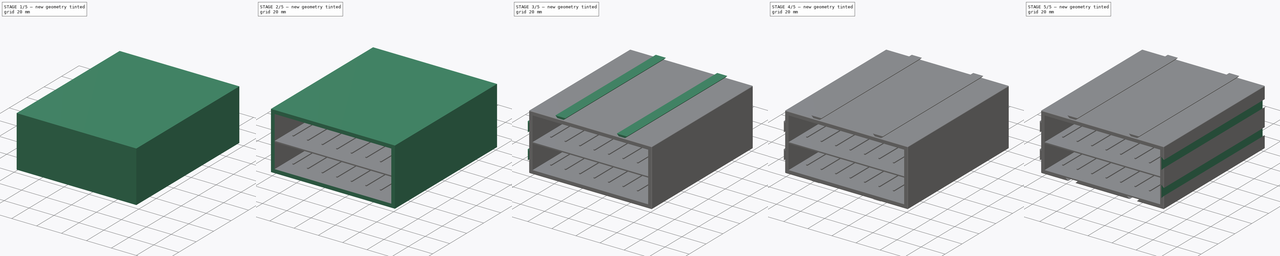
[diagram: build sequence overview — one tinted view per stage of 5, left to right]
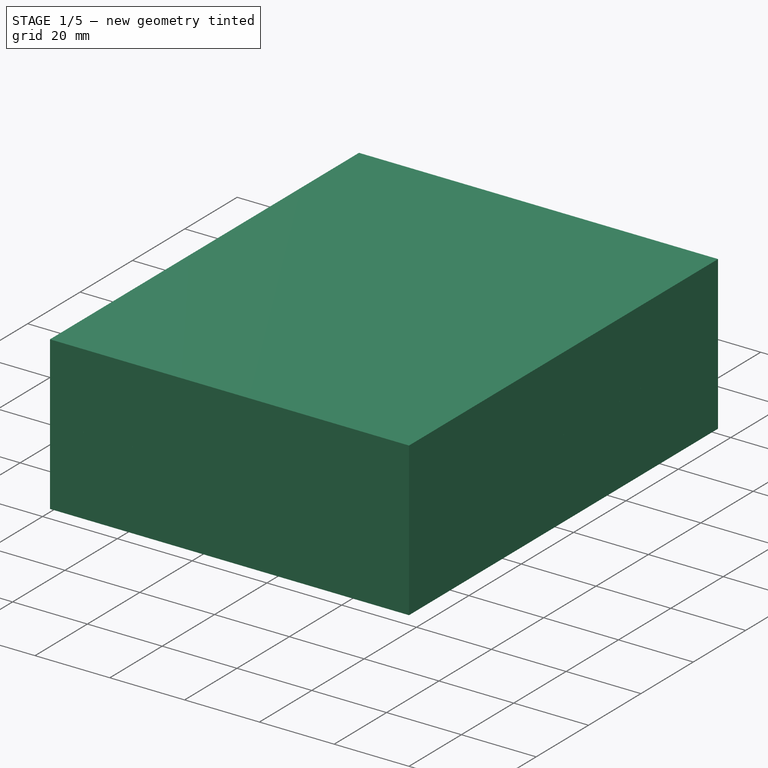
[diagram: stage 1 of 5 — iso view after this stage's code; geometry added in this stage tinted green]
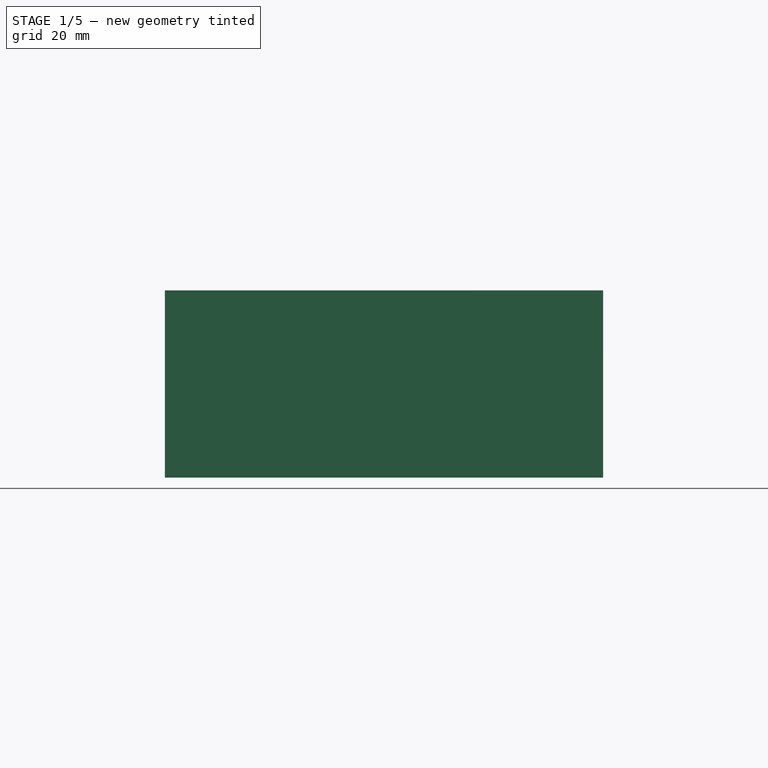
[diagram: stage 1 of 5 — front view after this stage's code; geometry added in this stage tinted green]
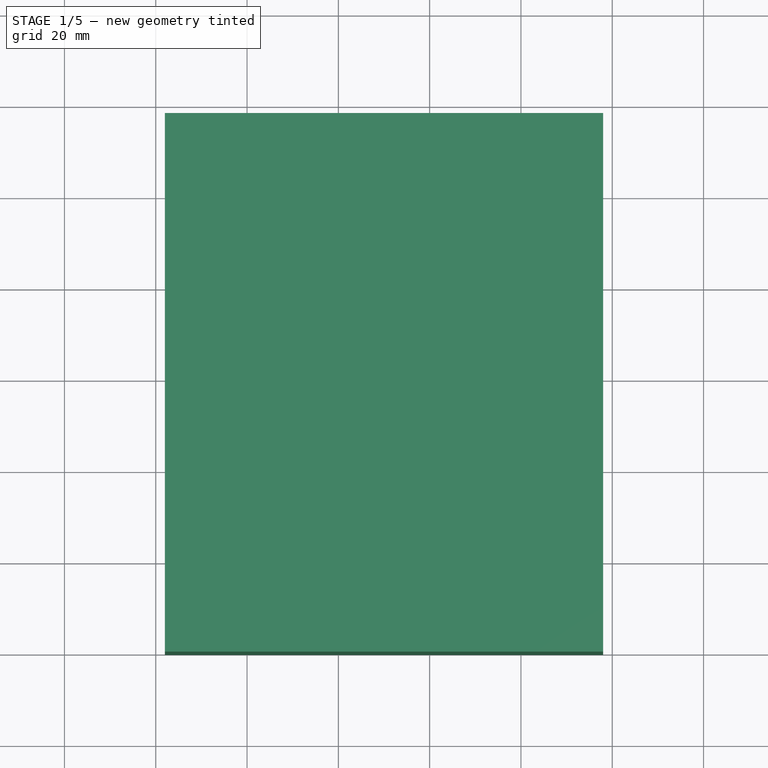
[diagram: stage 1 of 5 — top view after this stage's code; geometry added in this stage tinted green]
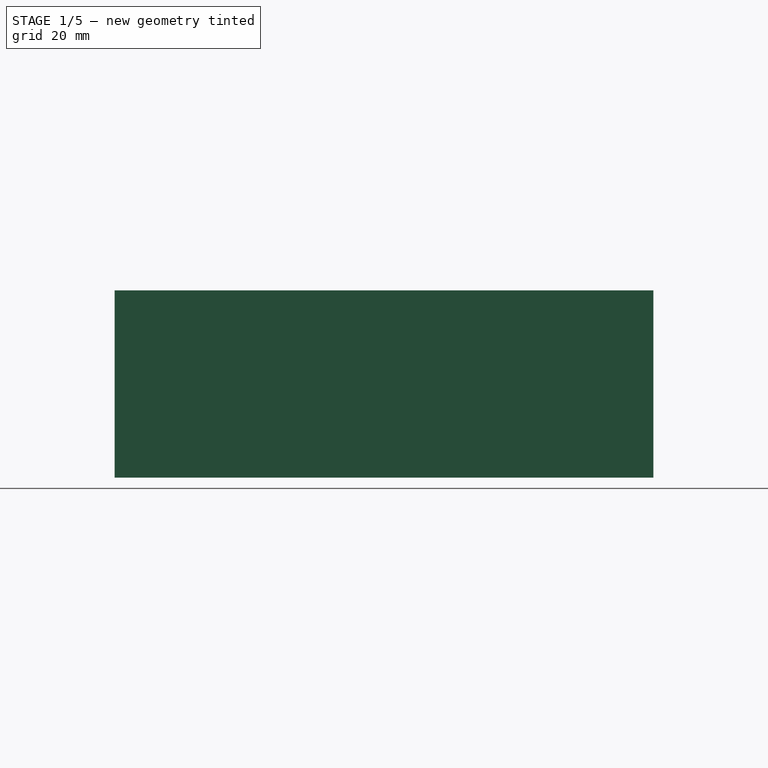
[diagram: stage 1 of 5 — right view after this stage's code; geometry added in this stage tinted green]
FCSTD DOCUMENT  (FreeCAD 0.16R)
Label: cabinet
License: All rights reserved
LicenseURL: http://en.wikipedia.org/wiki/All_rights_reserved
objects: Part::MultiFuse×5, Sketcher::SketchObject×5, Part::Extrusion×5, Part::FeaturePython×5, Part::Box×3, Part::Cut×2, Part::Fillet×1
note: 26 computed .brp shape members not serialized (recipe doc carries the construction recipe); baked Part::Feature solids carry a one-line shape summary decoded from their .brp

FEATURE [Part::Box] Box001  label="Inner Box"
  Height = 41
  Length = 96
  Placement = pos=(2,0,2) rot=(0,0,1;0rad)
  Width = 118
FEATURE [Part::Box] Box002  label="Separator"
  Height = 1
  Length = 96
  Placement = pos=(2,0,22) rot=(0,0,1;0rad)
  Width = 118
FEATURE [Sketcher::SketchObject] Sketch  label="Guide sketch"
  sketch-geometry (6):
    g0: LineSegment StartX=0.5 StartY=0 StartZ=0 EndX=0.25 EndY=104 EndZ=0
    g1: LineSegment StartX=0.25 StartY=104 StartZ=0 EndX=0.25 EndY=105 EndZ=0
    g2: LineSegment StartX=0.25 StartY=105 StartZ=0 EndX=1.75 EndY=105 EndZ=0
    g3: LineSegment StartX=1.75 StartY=105 StartZ=0 EndX=1.75 EndY=104 EndZ=0
    g4: LineSegment StartX=1.75 StartY=104 StartZ=0 EndX=1.5 EndY=0 EndZ=0
    g5: LineSegment StartX=1.5 StartY=0 StartZ=0 EndX=0.5 EndY=0 EndZ=0
  constraints (18):
    c: Coincident(g0,g1)
    c: Coincident(g1,g2)
    c: Coincident(g2,g3)
    c: Coincident(g3,g4)
    c: Coincident(g4,g5)
    c: Coincident(g5,g0)
    c: Horizontal(g2)
    c: Vertical(g1)
    c: Vertical(g3)
    c: Horizontal(g5)
    c: DistanceX(g5,g5) = 1
    c: DistanceX(g2,g2) = 1.5
    c: DistanceY(g1,g1) = 1
    c: DistanceY(g3,g3) = 1
    c: DistanceY(g4,g2) = 105
    c: DistanceY(g0,g-1) = 0
    c: DistanceX(g-1,g0) = 0.5
    c: DistanceX(g-1,g1) = 0.25
FEATURE [Part::Extrusion] Extrude  label="Guide"
  Base = -> Sketch
  Dir = (0,0,0.8)
  Solid = true
FEATURE [Part::FeaturePython] Array002  label="Guide Array"  # Draft array (typed FeaturePython)
  Angle = 360
  ArrayType = 0
  Axis = (0,0,1)
  Base = -> Extrude
  Center = (0,0,0)
  Fuse = false
  IntervalAxis = (0,0,0)
  IntervalX = (12,0,0)
  IntervalY = (0,1,0)
  IntervalZ = (0,0,21)
  NumberPolar = 1
  NumberX = 8
  NumberY = 1
  NumberZ = 2
  Placement = pos=(7,13,2) rot=(0,0,1;0rad)
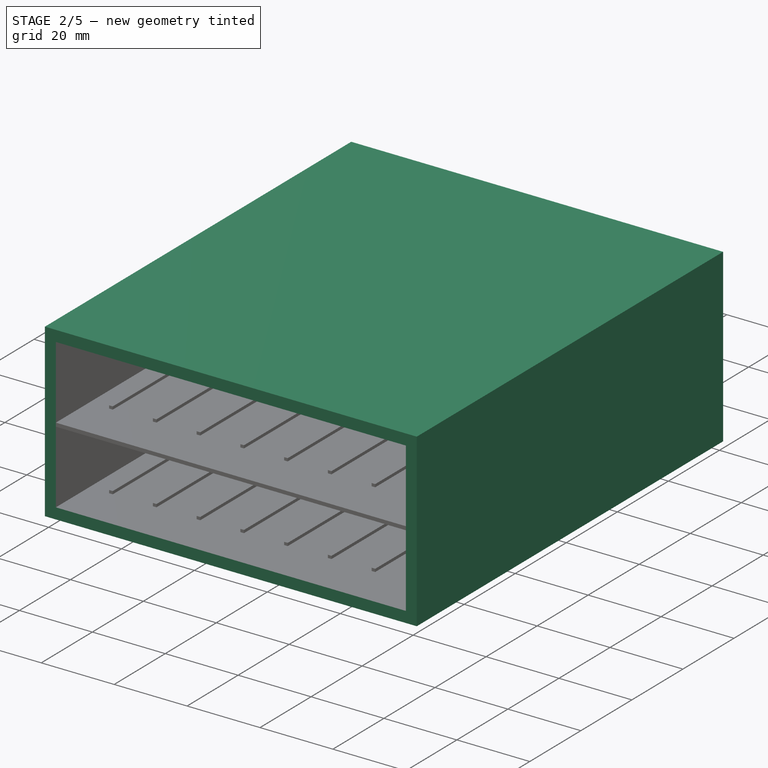
[diagram: stage 2 of 5 — iso view after this stage's code; geometry added in this stage tinted green]
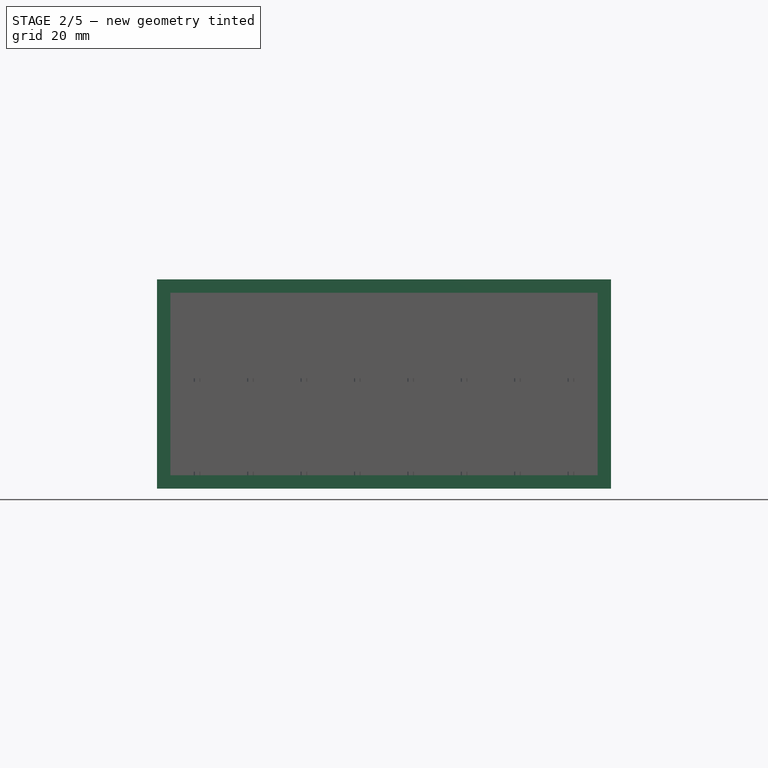
[diagram: stage 2 of 5 — front view after this stage's code; geometry added in this stage tinted green]
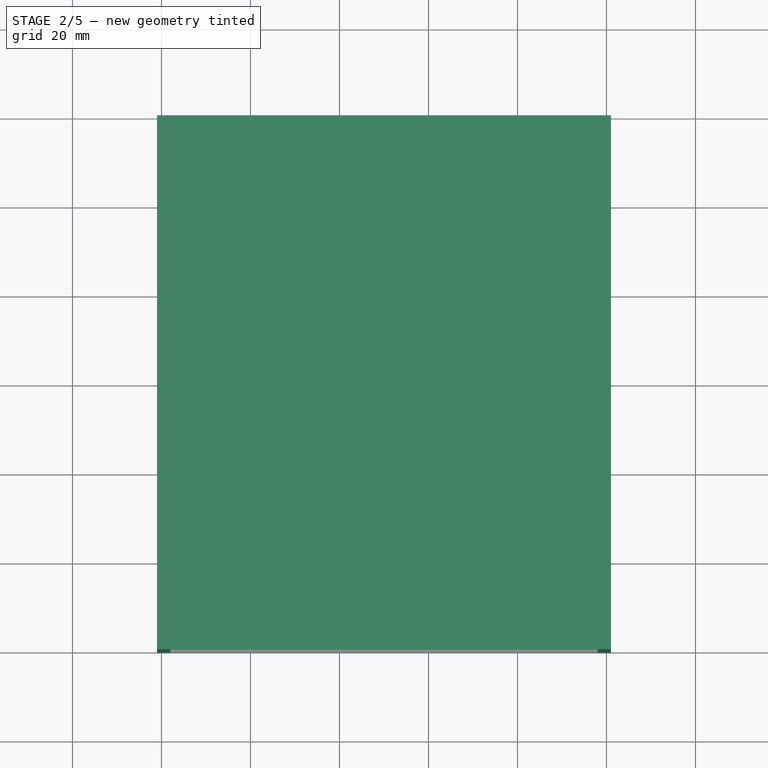
[diagram: stage 2 of 5 — top view after this stage's code; geometry added in this stage tinted green]
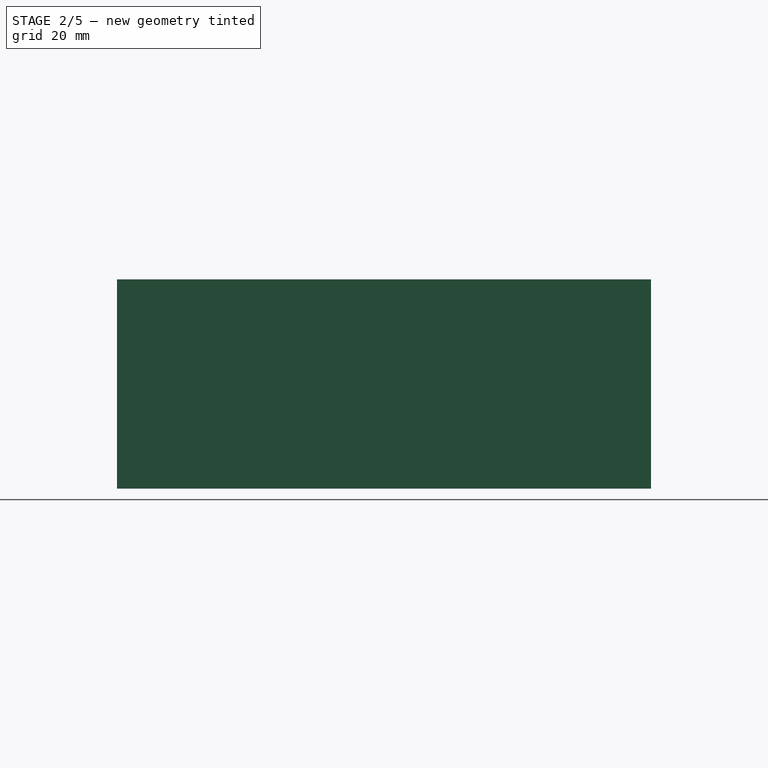
[diagram: stage 2 of 5 — right view after this stage's code; geometry added in this stage tinted green]
FEATURE [Part::Box] Box  label="Outer Box"
  Height = 47
  Length = 102
  Placement = pos=(-1,0,-1) rot=(0,0,1;0rad)
  Width = 120
FEATURE [Part::Cut] Cut  label="Shell"
  Base = -> Box
  Tool = -> Box001
FEATURE [Part::MultiFuse] Fusion  label="Cabinet Base"
  Shapes = -> [Cut,Box002]
FEATURE [Part::MultiFuse] Fusion001  label="GuidedCabinetBase"
  Shapes = -> [Array002,Fusion]
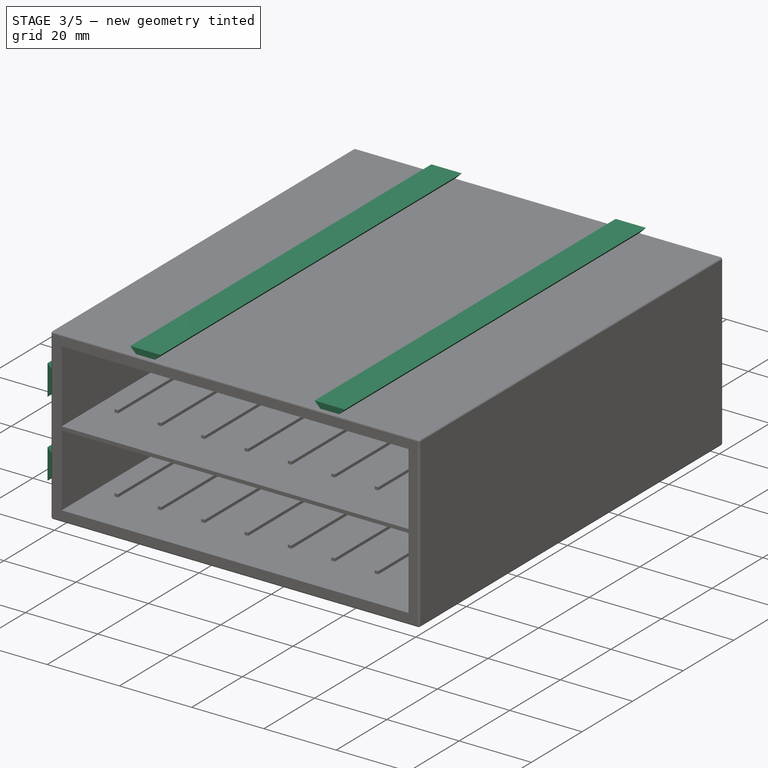
[diagram: stage 3 of 5 — iso view after this stage's code; geometry added in this stage tinted green]
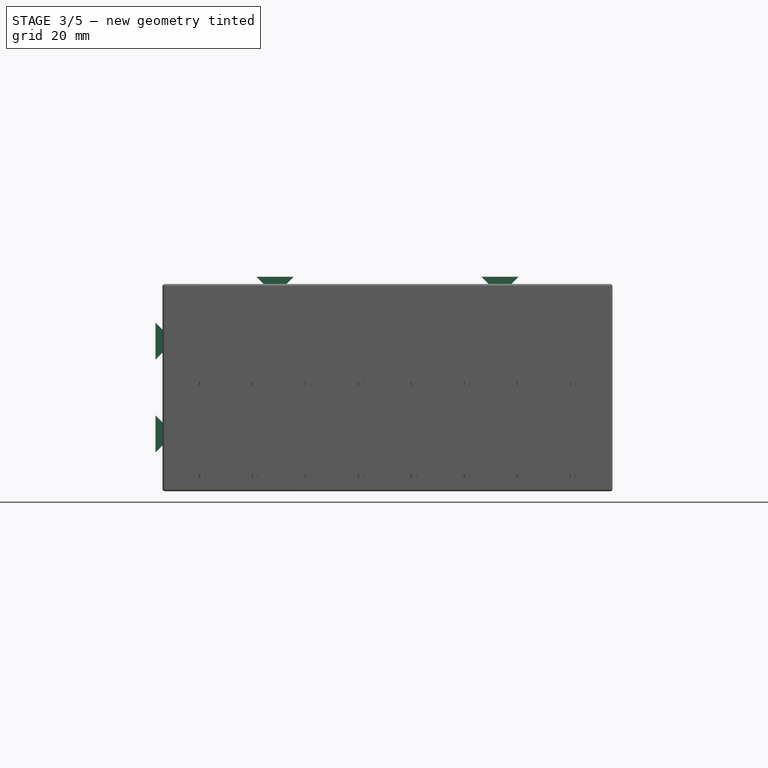
[diagram: stage 3 of 5 — front view after this stage's code; geometry added in this stage tinted green]
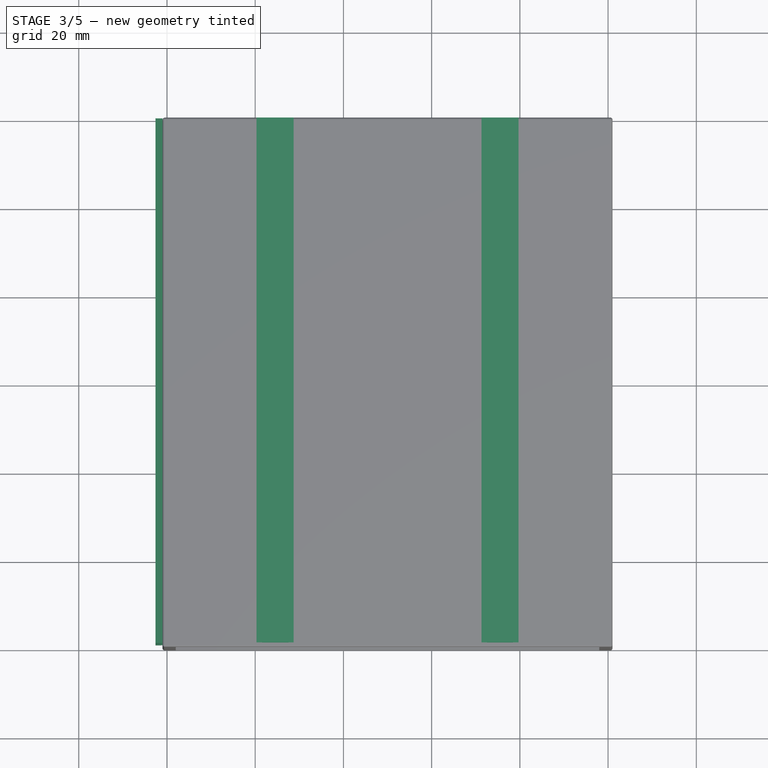
[diagram: stage 3 of 5 — top view after this stage's code; geometry added in this stage tinted green]
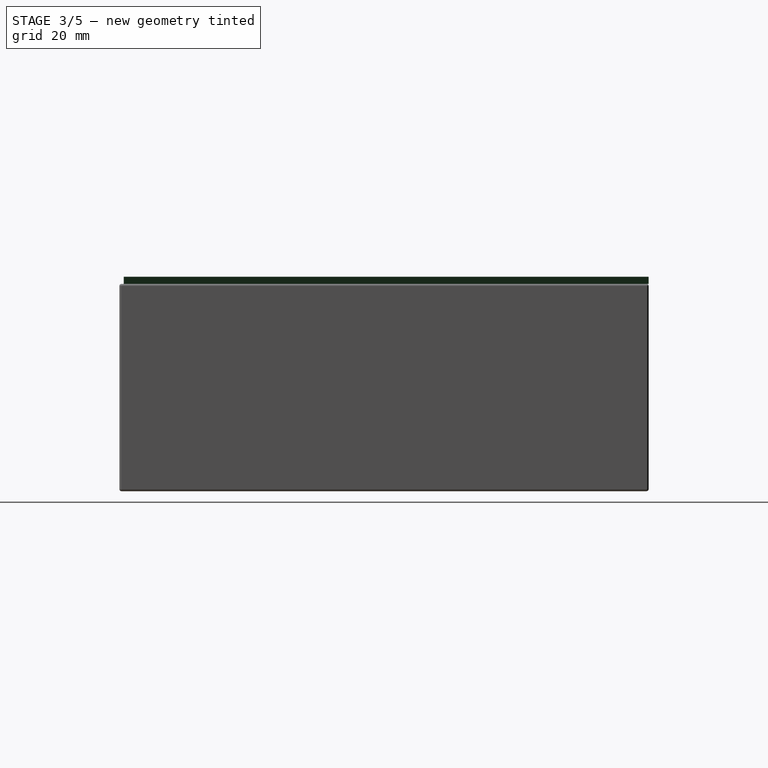
[diagram: stage 3 of 5 — right view after this stage's code; geometry added in this stage tinted green]
FEATURE [Sketcher::SketchObject] Sketch002  label="left_side_guide_sketch"
  Placement = pos=(-1,0,7) rot=(1,0,0;1.5708rad)
  sketch-geometry (4):
    g0: LineSegment StartX=0.4 StartY=9.2 StartZ=0 EndX=0.4 EndY=0.8 EndZ=0
    g1: LineSegment StartX=0.4 StartY=0.8 StartZ=0 EndX=2 EndY=2.4 EndZ=0
    g2: LineSegment StartX=2 StartY=2.4 StartZ=0 EndX=2 EndY=7.6 EndZ=0
    g3: LineSegment StartX=2 StartY=7.6 StartZ=0 EndX=0.4 EndY=9.2 EndZ=0
  constraints (12):
    c: Coincident(g0,g1)
    c: Coincident(g1,g2)
    c: Coincident(g2,g3)
    c: Coincident(g3,g0)
    c: Vertical(g2)
    c: DistanceY(g2,g2) = 5.2
    c: Vertical(g0)
    c: DistanceX(g-1,g0) = 0.4
    c: DistanceY(g-1,g0) = 0.8
    c: DistanceY(g0,g0) = 8.4
    c: DistanceX(g-1,g1) = 2
    c: DistanceY(g-1,g1) = 2.4
FEATURE [Part::Extrusion] Extrude002  label="LeftsideGuide"
  Base = -> Sketch002
  Dir = (0,119,0)
  Placement = pos=(-2,1,0) rot=(0,0,1;0rad)
  Solid = true
FEATURE [Part::FeaturePython] Array004  label="LeftSideGuide Array"  # Draft array (typed FeaturePython)
  Angle = 360
  ArrayType = 0
  Axis = (0,0,1)
  Base = -> Extrude002
  Center = (0,0,0)
  Fuse = false
  IntervalAxis = (0,0,0)
  IntervalX = (1,0,0)
  IntervalY = (0,1,0)
  IntervalZ = (0,0,21)
  NumberPolar = 1
  NumberX = 1
  NumberY = 1
  NumberZ = 2
FEATURE [Sketcher::SketchObject] Sketch003  label="top_side_guide_sketch"
  Placement = pos=(0,0,0) rot=(1,0,0;1.5708rad)
  sketch-geometry (4):
    g0: LineSegment StartX=-5.2 StartY=47.6 StartZ=0 EndX=3.2 EndY=47.6 EndZ=0
    g1: LineSegment StartX=3.2 StartY=47.6 StartZ=0 EndX=1.6 EndY=46 EndZ=0
    g2: LineSegment StartX=1.6 StartY=46 StartZ=0 EndX=-3.6 EndY=46 EndZ=0
    g3: LineSegment StartX=-3.6 StartY=46 StartZ=0 EndX=-5.2 EndY=47.6 EndZ=0
  constraints (12):
    c: Coincident(g0,g1)
    c: Coincident(g1,g2)
    c: Coincident(g2,g3)
    c: Coincident(g3,g0)
    c: DistanceX(g0,g0) = 8.4
    c: DistanceX(g2,g2) = 5.2
    c: DistanceY(g2,g0) = 1.6
    c: Horizontal(g0)
    c: Horizontal(g2)
    c: DistanceX(g1,g0) = 1.6
    c: DistanceX(g-1,g0) = -5.2
    c: DistanceY(g-1,g1) = 46
FEATURE [Part::Extrusion] Extrude003  label="TopSideGuide"
  Base = -> Sketch003
  Dir = (0,119,0)
  Placement = pos=(25.5,1,0) rot=(0,0,1;0rad)
  Solid = true
FEATURE [Part::FeaturePython] Array  label="TopSideGuideArray"  # Draft array (typed FeaturePython)
  Angle = 360
  ArrayType = 0
  Axis = (0,0,1)
  Base = -> Extrude003
  Center = (0,0,0)
  Fuse = false
  IntervalAxis = (0,0,0)
  IntervalX = (51,0,0)
  IntervalY = (0,1,0)
  IntervalZ = (0,0,0)
  NumberPolar = 1
  NumberX = 2
  NumberY = 1
  NumberZ = 1
FEATURE [Part::Fillet] Fillet
  Base = -> Fusion001
  Edges = 12 edges r=0.5: [Edge1,Edge2,Edge3,Edge4,Edge5,Edge6,Edge7,Edge16,Edge17,Edge18,Edge19,Edge20]
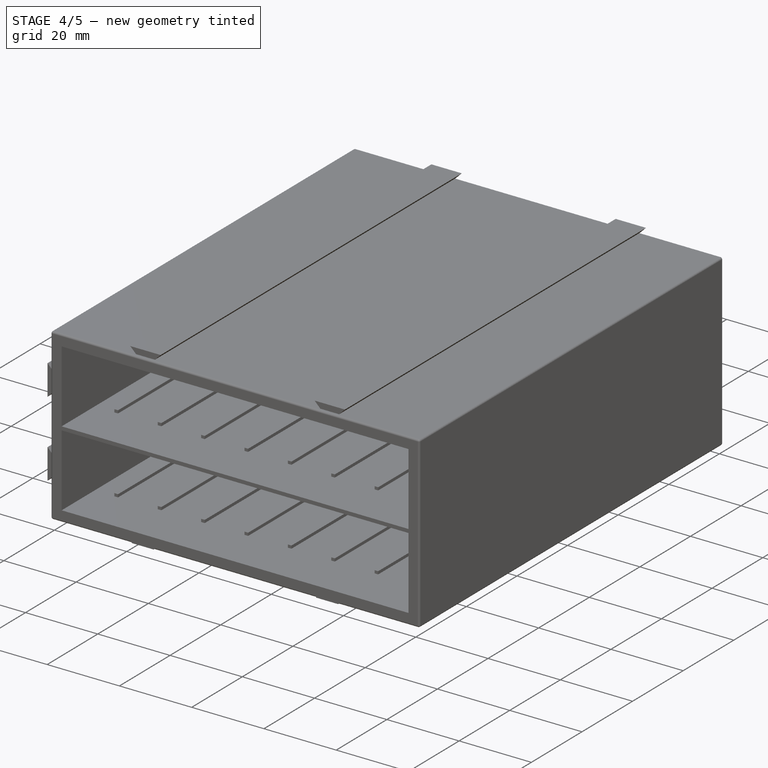
[diagram: stage 4 of 5 — iso view after this stage's code; geometry added in this stage tinted green]
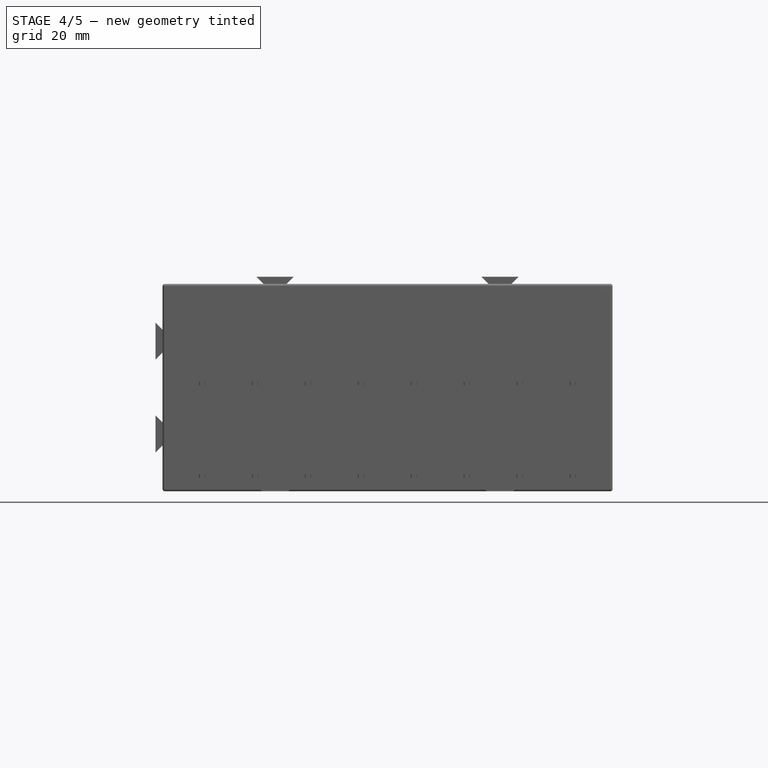
[diagram: stage 4 of 5 — front view after this stage's code; geometry added in this stage tinted green]
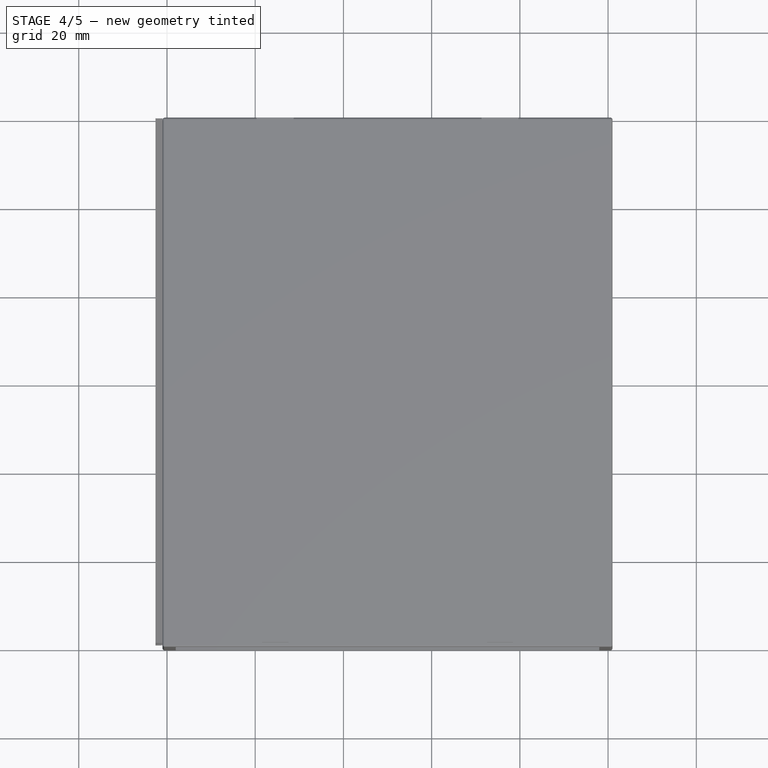
[diagram: stage 4 of 5 — top view after this stage's code; geometry added in this stage tinted green]
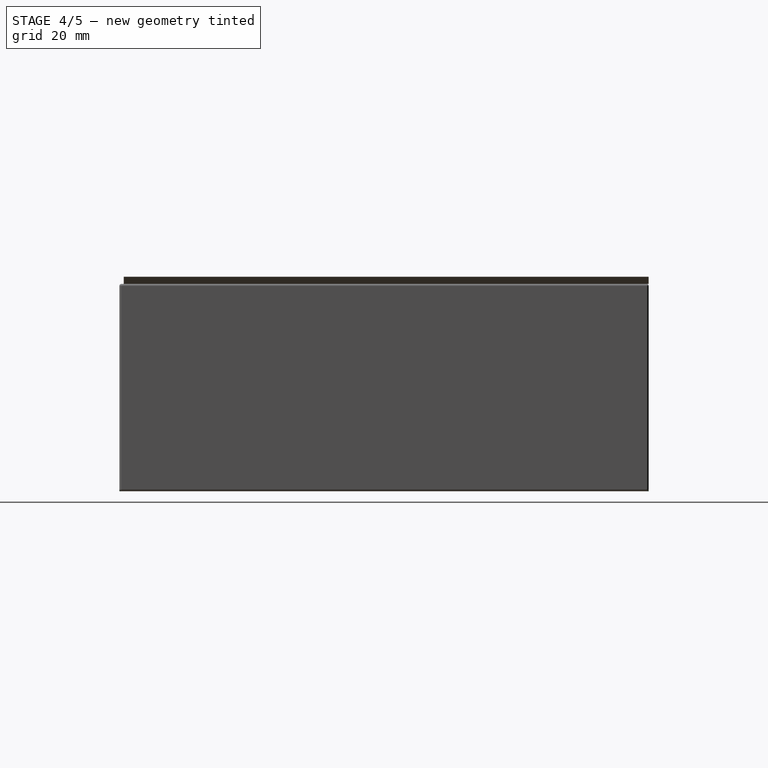
[diagram: stage 4 of 5 — right view after this stage's code; geometry added in this stage tinted green]
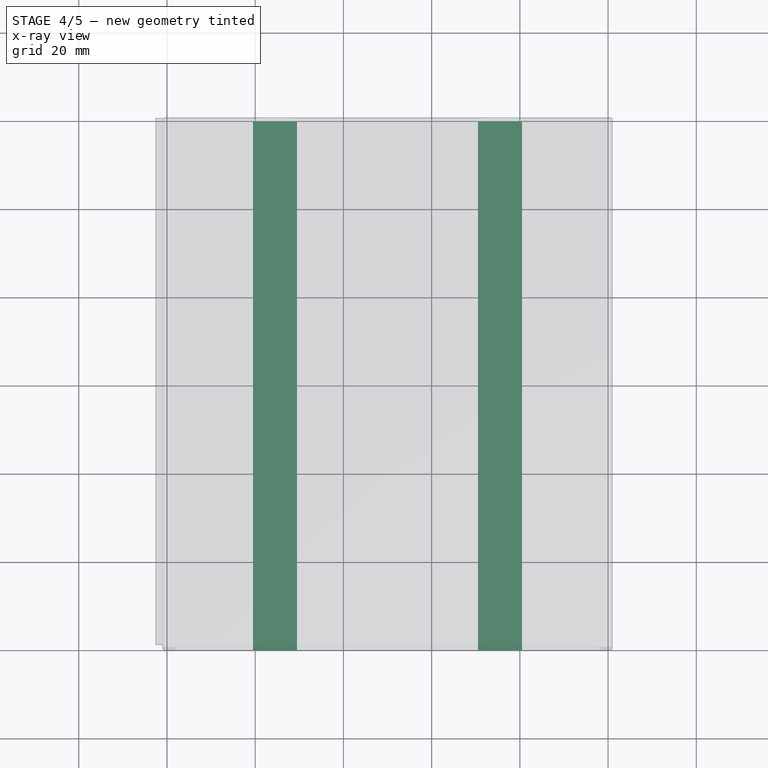
[diagram: stage 4 of 5 — x-ray composite at the top view; earlier geometry ghosted, this stage's added geometry solid]
FEATURE [Sketcher::SketchObject] Sketch004  label="bottom_side_guide_sketch"
  Placement = pos=(0,0,0) rot=(1,0,0;1.5708rad)
  sketch-geometry (4):
    g0: LineSegment StartX=-6 StartY=1 StartZ=0 EndX=4 EndY=1 EndZ=0
    g1: LineSegment StartX=4 StartY=1 StartZ=0 EndX=2 EndY=-1 EndZ=0
    g2: LineSegment StartX=2 StartY=-1 StartZ=0 EndX=-4 EndY=-1 EndZ=0
    g3: LineSegment StartX=-4 StartY=-1 StartZ=0 EndX=-6 EndY=1 EndZ=0
  constraints (12):
    c: Coincident(g0,g1)
    c: Coincident(g1,g2)
    c: Coincident(g2,g3)
    c: Coincident(g3,g0)
    c: Horizontal(g0)
    c: Horizontal(g2)
    c: DistanceX(g0,g0) = 10
    c: DistanceX(g2,g2) = 6
    c: DistanceY(g2,g0) = 2
    c: DistanceX(g1,g0) = 2
    c: DistanceX(g-1,g0) = -6
    c: DistanceY(g1) = -1
FEATURE [Part::Extrusion] Extrude004  label="BottomSideGuide"
  Base = -> Sketch004
  Dir = (0,120,0)
  Placement = pos=(25.5,0,0) rot=(0,0,1;0rad)
  Solid = true
FEATURE [Part::FeaturePython] Array005  label="BottomSideGuideArray"  # Draft array (typed FeaturePython)
  Angle = 360
  ArrayType = 0
  Axis = (0,0,1)
  Base = -> Extrude004
  Center = (0,0,0)
  Fuse = false
  IntervalAxis = (0,0,0)
  IntervalX = (51,0,0)
  IntervalY = (0,1,0)
  IntervalZ = (0,0,0)
  NumberPolar = 1
  NumberX = 2
  NumberY = 1
  NumberZ = 1
FEATURE [Part::MultiFuse] Fusion002  label="GuideRods"
  Shapes = -> [Array004,Array]
FEATURE [Part::MultiFuse] Fusion004
  Shapes = -> [Fillet,Fusion002]
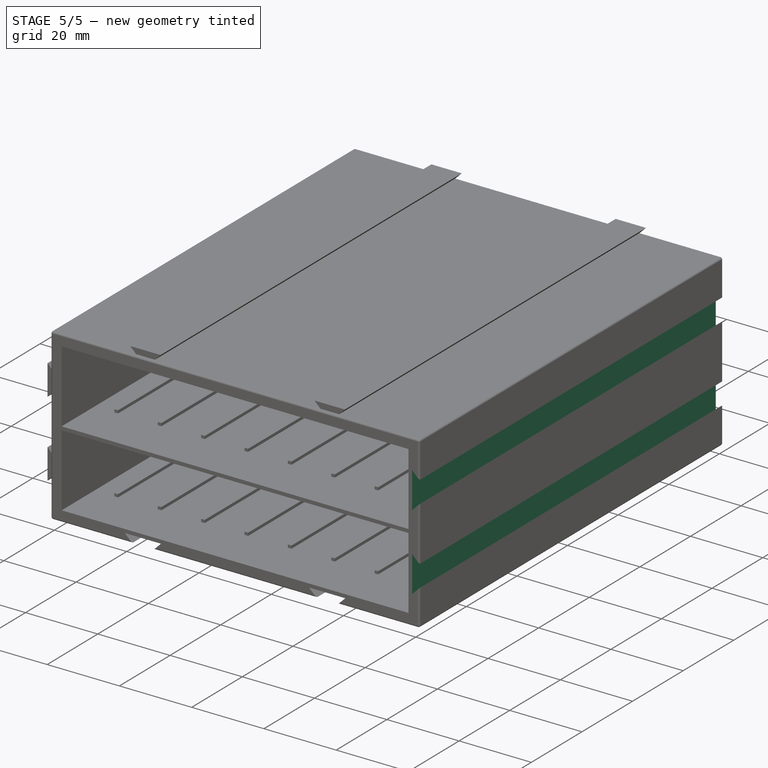
[diagram: stage 5 of 5 — iso view after this stage's code; geometry added in this stage tinted green]
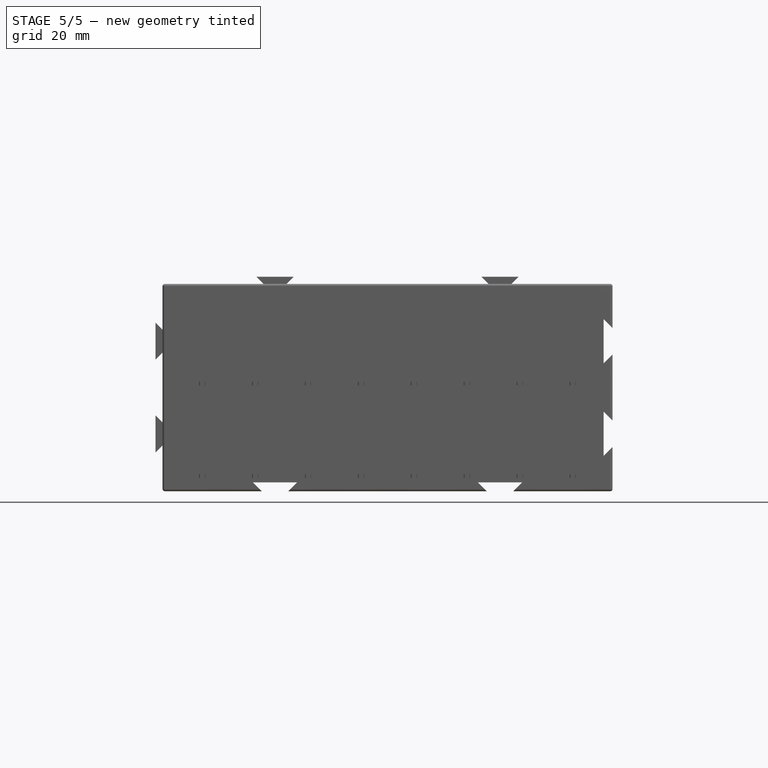
[diagram: stage 5 of 5 — front view after this stage's code; geometry added in this stage tinted green]
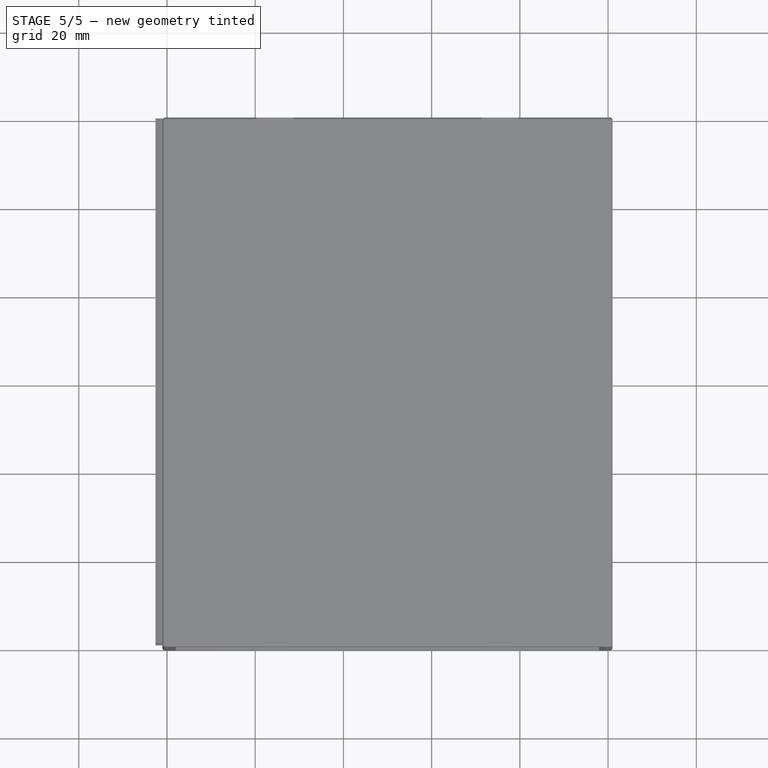
[diagram: stage 5 of 5 — top view after this stage's code; geometry added in this stage tinted green]
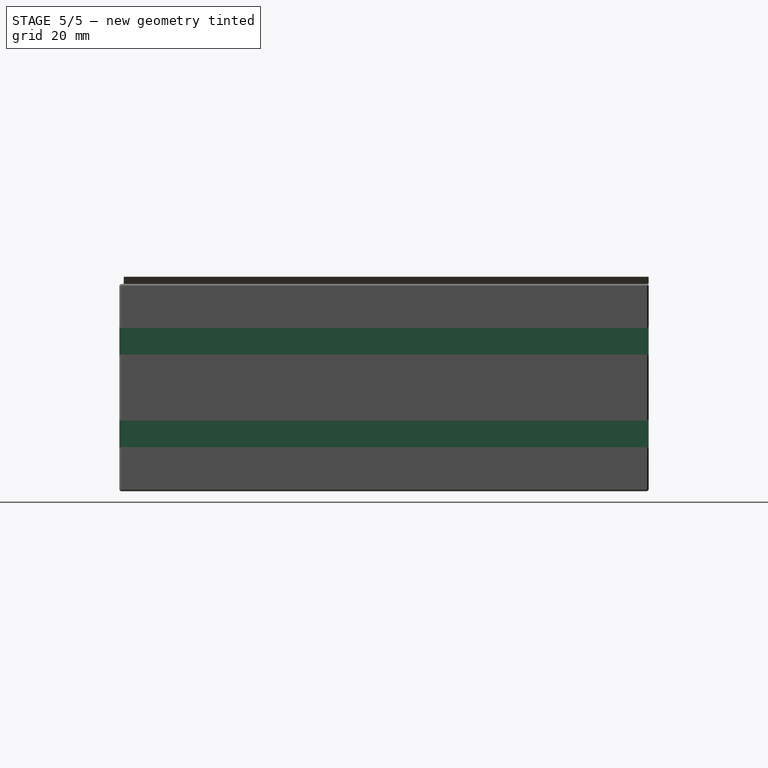
[diagram: stage 5 of 5 — right view after this stage's code; geometry added in this stage tinted green]
FEATURE [Sketcher::SketchObject] Sketch001  label="right_side_guide_sketch"
  Placement = pos=(99,0,7) rot=(1,0,0;1.5708rad)
  sketch-geometry (4):
    g0: LineSegment StartX=0 StartY=0 StartZ=0 EndX=0 EndY=10 EndZ=0
    g1: LineSegment StartX=0 StartY=10 StartZ=0 EndX=2 EndY=8 EndZ=0
    g2: LineSegment StartX=2 StartY=8 StartZ=0 EndX=2 EndY=2 EndZ=0
    g3: LineSegment StartX=2 StartY=2 StartZ=0 EndX=0 EndY=0 EndZ=0
  constraints (11):
    c: Coincident(g0,g1)
    c: Coincident(g1,g2)
    c: Coincident(g2,g3)
    c: Coincident(g3,g0)
    c: Vertical(g0)
    c: Vertical(g2)
    c: Coincident(g0,g-1)
    c: DistanceX(g-1,g2) = 2
    c: DistanceY(g0,g0) = 10
    c: DistanceY(g2,g2) = 6
    c: DistanceY(g-1,g2) = 2
FEATURE [Part::Extrusion] Extrude001  label="RightSideGuide"
  Base = -> Sketch001
  Dir = (0,120,0)
  Solid = true
FEATURE [Part::FeaturePython] Array003  label="RightSideGuide Array"  # Draft array (typed FeaturePython)
  Angle = 360
  ArrayType = 0
  Axis = (0,0,1)
  Base = -> Extrude001
  Center = (0,0,0)
  Fuse = false
  IntervalAxis = (0,0,0)
  IntervalX = (1,0,0)
  IntervalY = (0,1,0)
  IntervalZ = (0,0,21)
  NumberPolar = 1
  NumberX = 1
  NumberY = 1
  NumberZ = 2
FEATURE [Part::MultiFuse] Fusion003  label="GuideGaps"
  Shapes = -> [Array003,Array005]
FEATURE [Part::Cut] Cut001  label="Final Cabinet"
  Base = -> Fusion004
  Tool = -> Fusion003
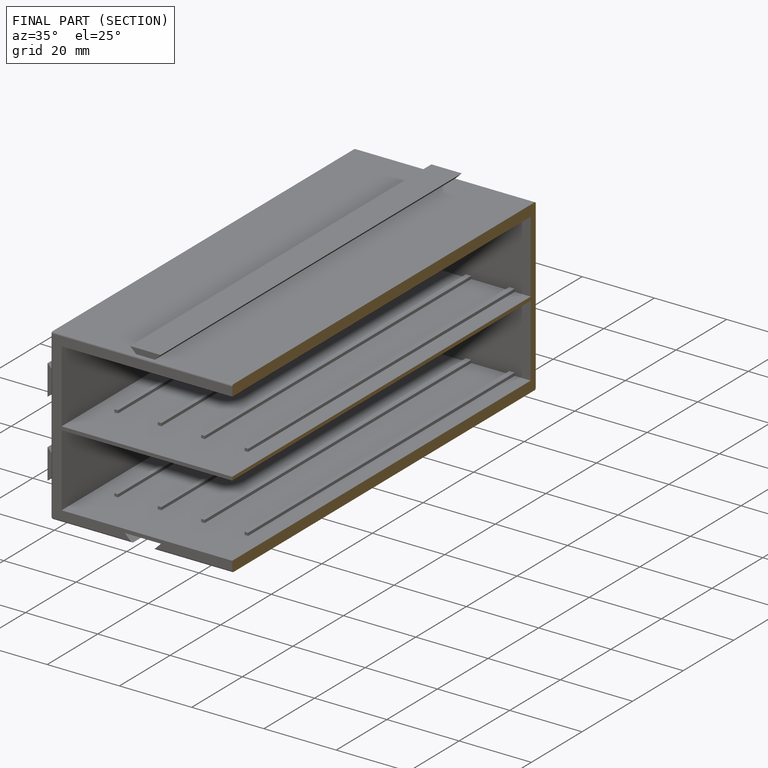
[diagram: finished part — half-section view (interior)]
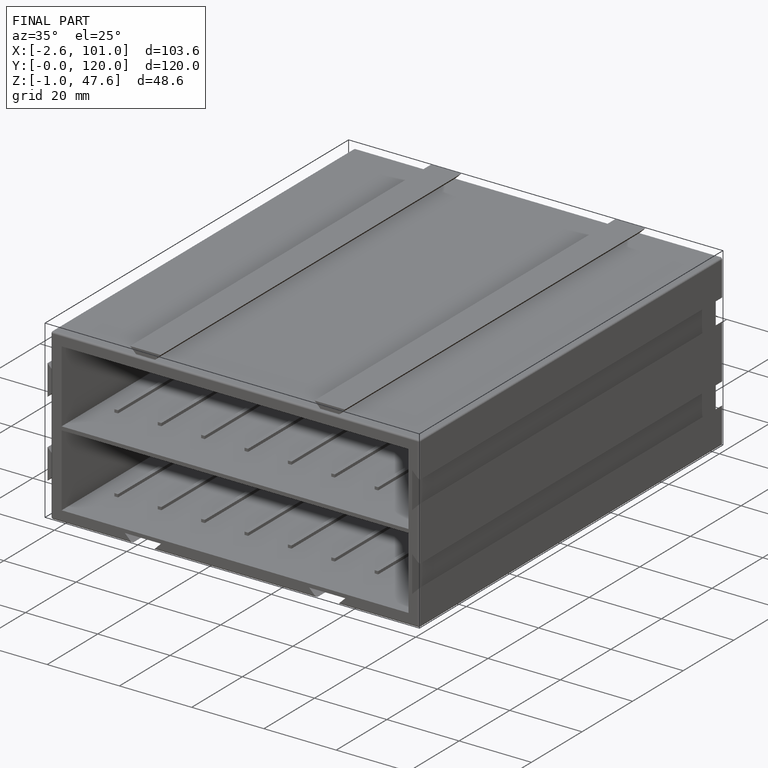
[diagram: finished part — iso view with bounding-box wireframe]
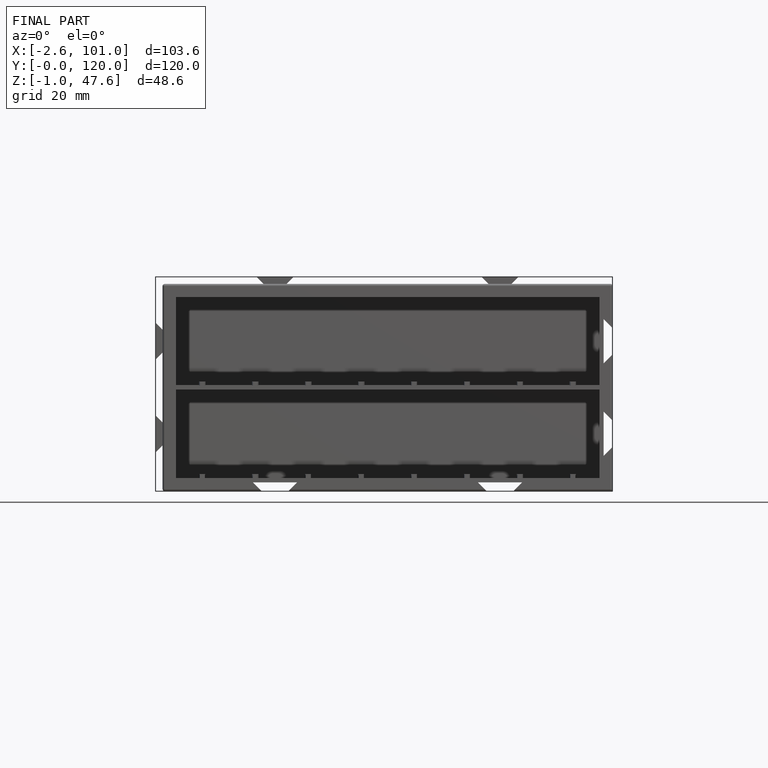
[diagram: finished part — front view with bounding-box wireframe]
